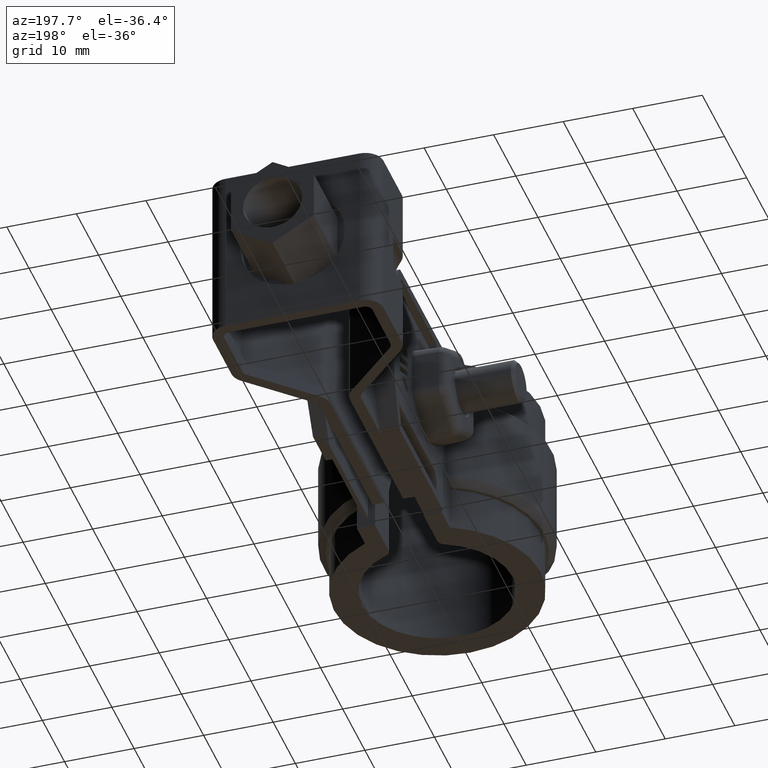
[diagram: clean part render]
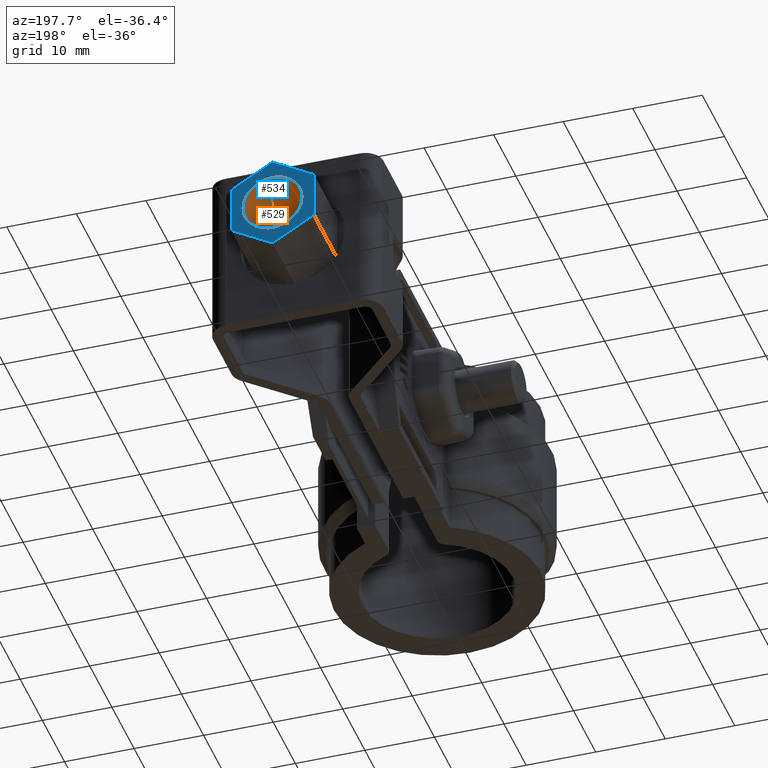
[diagram: same view with the hole feature highlighted: cylindrical wall and planar end face, labeled with their STEP entity ids]
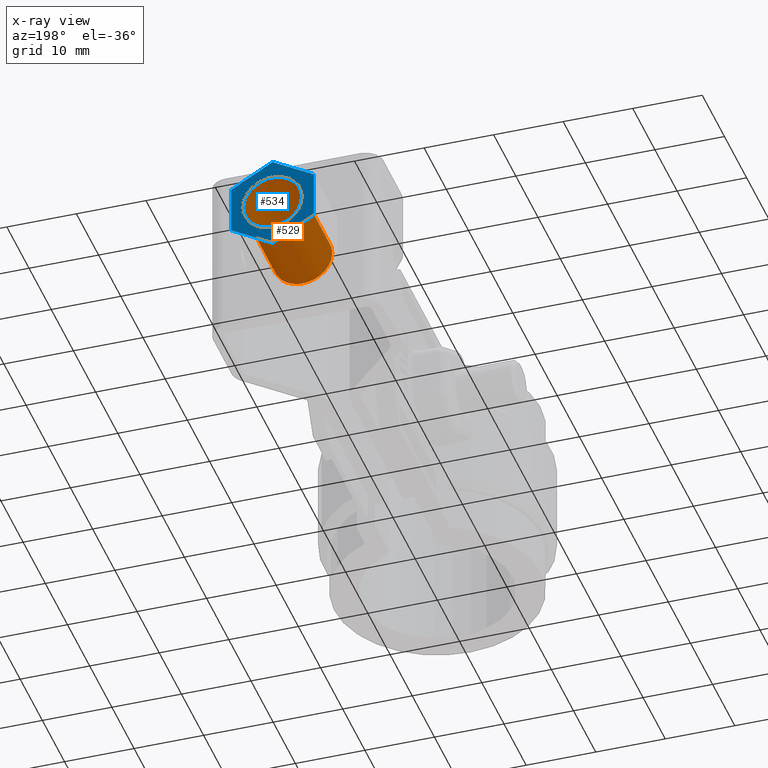
[diagram: x-ray of the same camera — body ghosted, the hole faces saturated]
A machine part, auxiliary view. The highlighted faces form one hole feature of diameter 8.5 mm: the cylindrical wall (entity #529, orange) and its adjacent planar end face (entity #534, blue) — they share a circular edge in the B-rep.
The next image is the same camera in x-ray (body ghosted, the hole faces saturated) — the bore reads through the body.
Wall:
#529 = ADVANCED_FACE( '', ( #1040, #1041 ), #1042, .F. );
#1040 = FACE_OUTER_BOUND( '', #2121, .T. );
#1041 = FACE_OUTER_BOUND( '', #2122, .T. );
#1042 = CYLINDRICAL_SURFACE( '', #2123, 4.25000000000000 );
#2121 = EDGE_LOOP( '', ( #4978 ) );
#2122 = EDGE_LOOP( '', ( #4979 ) );
#2123 = AXIS2_PLACEMENT_3D( '', #4980, #4981, #4982 );
#4978 = ORIENTED_EDGE( '', *, *, #6774, .F. );
#4979 = ORIENTED_EDGE( '', *, *, #6772, .F. );
#4980 = CARTESIAN_POINT( '', ( 1.83992563723389E-010, 56.4482154297680, -12.4999999876951 ) );
#4981 = DIRECTION( '', ( -8.53589041478956E-013, -1.00000000000000, -9.34504695848685E-011 ) );
#4982 = DIRECTION( '', ( 1.00000000000000, -8.53589041550522E-013, 7.65812316754636E-013 ) );
#6772 = EDGE_CURVE( '', #8010, #8010, #8011, .T. );
#6774 = EDGE_CURVE( '', #8014, #8014, #8015, .T. );
#8010 = VERTEX_POINT( '', #11175 );
#8011 = CIRCLE( '', #11176, 4.25000000000000 );
#8014 = VERTEX_POINT( '', #11179 );
#8015 = CIRCLE( '', #11180, 4.25000000000000 );
#11175 = CARTESIAN_POINT( '', ( 4.25000000018762, 60.6982154297965, -12.4999999872947 ) );
#11176 = AXIS2_PLACEMENT_3D( '', #12895, #12896, #12897 );
#11179 = CARTESIAN_POINT( '', ( 4.25000000019923, 74.2982154297965, -12.4999999860238 ) );
#11180 = AXIS2_PLACEMENT_3D( '', #12901, #12902, #12903 );
#12895 = CARTESIAN_POINT( '', ( 1.87620317149702E-010, 60.6982154298001, -12.4999999872979 ) );
#12896 = DIRECTION( '', ( 8.53589041478956E-013, 1.00000000000000, 9.34504695848685E-011 ) );
#12897 = DIRECTION( '', ( 1.00000000000000, -8.53589041550490E-013, 7.65479249847249E-013 ) );
#12901 = CARTESIAN_POINT( '', ( 1.99229128113815E-010, 74.2982154298001, -12.4999999860270 ) );
#12902 = DIRECTION( '', ( -8.53589041478956E-013, -1.00000000000000, -9.34504695848685E-011 ) );
#12903 = DIRECTION( '', ( 1.00000000000000, -8.53589041550522E-013, 7.65812316754636E-013 ) );
End face:
#534 = ADVANCED_FACE( '', ( #1052, #1053 ), #1054, .T. );
#1052 = FACE_BOUND( '', #2133, .T. );
#1053 = FACE_OUTER_BOUND( '', #2134, .T. );
#1054 = PLANE( '', #2135 );
#2133 = EDGE_LOOP( '', ( #5009 ) );
#2134 = EDGE_LOOP( '', ( #5010, #5011, #5012, #5013, #5014, #5015 ) );
#2135 = AXIS2_PLACEMENT_3D( '', #5016, #5017, #5018 );
#5009 = ORIENTED_EDGE( '', *, *, #6774, .T. );
#5010 = ORIENTED_EDGE( '', *, *, #6760, .T. );
#5011 = ORIENTED_EDGE( '', *, *, #6769, .T. );
#5012 = ORIENTED_EDGE( '', *, *, #6771, .T. );
#5013 = ORIENTED_EDGE( '', *, *, #6776, .T. );
#5014 = ORIENTED_EDGE( '', *, *, #6778, .T. );
#5015 = ORIENTED_EDGE( '', *, *, #6779, .T. );
#5016 = CARTESIAN_POINT( '', ( 5.95000000020186, 74.2982154301160, -15.9352340877007 ) );
#5017 = DIRECTION( '', ( 8.53589041478950E-013, 1.00000000000000, 9.34504695848685E-011 ) );
#5018 = DIRECTION( '', ( 0.500000000000663, 8.05036861353054E-011, -0.866025403784056 ) );
#6760 = EDGE_CURVE( '', #7990, #7988, #7991, .T. );
#6769 = EDGE_CURVE( '', #7988, #8004, #8006, .T. );
#6771 = EDGE_CURVE( '', #8004, #8007, #8009, .T. );
#6774 = EDGE_CURVE( '', #8014, #8014, #8015, .T. );
#6776 = EDGE_CURVE( '', #8007, #8016, #8018, .T. );
#6778 = EDGE_CURVE( '', #8016, #8019, #8021, .T. );
#6779 = EDGE_CURVE( '', #8019, #7990, #8022, .T. );
#7988 = VERTEX_POINT( '', #11141 );
#7990 = VERTEX_POINT( '', #11144 );
#7991 = LINE( '', #11145, #11146 );
#8004 = VERTEX_POINT( '', #11165 );
#8006 = LINE( '', #11168, #11169 );
#8007 = VERTEX_POINT( '', #11170 );
#8009 = LINE( '', #11173, #11174 );
#8014 = VERTEX_POINT( '', #11179 );
#8015 = CIRCLE( '', #11180, 4.25000000000000 );
#8016 = VERTEX_POINT( '', #11181 );
#8018 = LINE( '', #11184, #11185 );
#8019 = VERTEX_POINT( '', #11186 );
#8021 = LINE( '', #11189, #11190 );
#8022 = LINE( '', #11191, #11192 );
#11141 = CARTESIAN_POINT( '', ( 5.95000000020186, 74.2982154301160, -15.9352340877007 ) );
#11144 = CARTESIAN_POINT( '', ( 5.95000000019660, 74.2982154294740, -9.06476588434417 ) );
#11145 = CARTESIAN_POINT( '', ( 5.95000000019660, 74.2982154294740, -9.06476588434417 ) );
#11146 = VECTOR( '', #12881, 1000.00000000000 );
#11165 = CARTESIAN_POINT( '', ( 2.04491364726851E-010, 74.2982154304421, -19.3704681893836 ) );
#11168 = CARTESIAN_POINT( '', ( 5.95000000020186, 74.2982154301160, -15.9352340877007 ) );
#11169 = VECTOR( '', #12892, 1000.00000000000 );
#11170 = CARTESIAN_POINT( '', ( -5.94999999979814, 74.2982154301262, -15.9352340877098 ) );
#11173 = CARTESIAN_POINT( '', ( 2.04493099450327E-010, 74.2982154304421, -19.3704681893836 ) );
#11174 = VECTOR( '', #12894, 1000.00000000000 );
#11179 = CARTESIAN_POINT( '', ( 4.25000000019923, 74.2982154297965, -12.4999999860238 ) );
#11180 = AXIS2_PLACEMENT_3D( '', #12901, #12902, #12903 );
#11181 = CARTESIAN_POINT( '', ( -5.94999999980340, 74.2982154294841, -9.06476588435330 ) );
#11184 = CARTESIAN_POINT( '', ( -5.94999999979814, 74.2982154301262, -15.9352340877098 ) );
#11185 = VECTOR( '', #12905, 1000.00000000000 );
#11186 = CARTESIAN_POINT( '', ( 1.93966024139042E-010, 74.2982154291580, -5.62953178267045 ) );
#11189 = CARTESIAN_POINT( '', ( -5.94999999980340, 74.2982154294841, -9.06476588435329 ) );
#11190 = VECTOR( '', #12907, 1000.00000000000 );
#11191 = CARTESIAN_POINT( '', ( 1.93972095671208E-010, 74.2982154291580, -5.62953178267045 ) );
#11192 = VECTOR( '', #12908, 1000.00000000000 );
#12881 = DIRECTION( '', ( 7.65867827985636E-013, 9.34504695848679E-011, -1.00000000000000 ) );
#12892 = DIRECTION( '', ( -0.866025403784056, 4.74644645868086E-011, -0.500000000000663 ) );
#12894 = DIRECTION( '', ( -0.866025403784822, -4.59860049980592E-011, 0.499999999999337 ) );
#12901 = CARTESIAN_POINT( '', ( 1.99229128113815E-010, 74.2982154298001, -12.4999999860270 ) );
#12902 = DIRECTION( '', ( -8.53589041478956E-013, -1.00000000000000, -9.34504695848685E-011 ) );
#12903 = DIRECTION( '', ( 1.00000000000000, -8.53589041550522E-013, 7.65812316754636E-013 ) );
#12905 = DIRECTION( '', ( -7.65423738775786E-013, -9.34504695848679E-011, 1.00000000000000 ) );
#12907 = DIRECTION( '', ( 0.866025403784056, -4.74644645868087E-011, 0.500000000000663 ) );
#12908 = DIRECTION( '', ( 0.866025403784822, 4.59860049980592E-011, -0.499999999999337 ) );